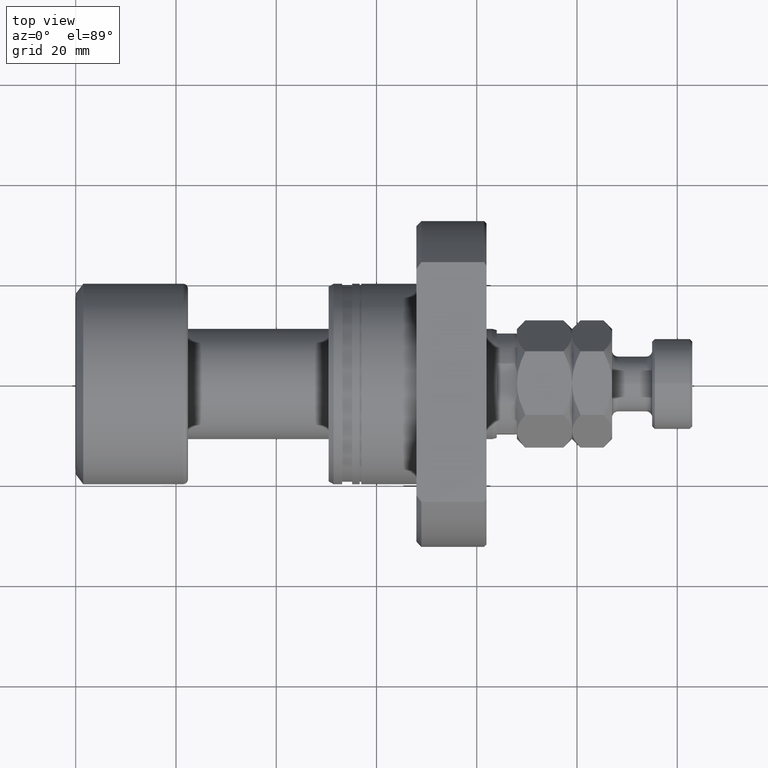
[diagram: clean part render]
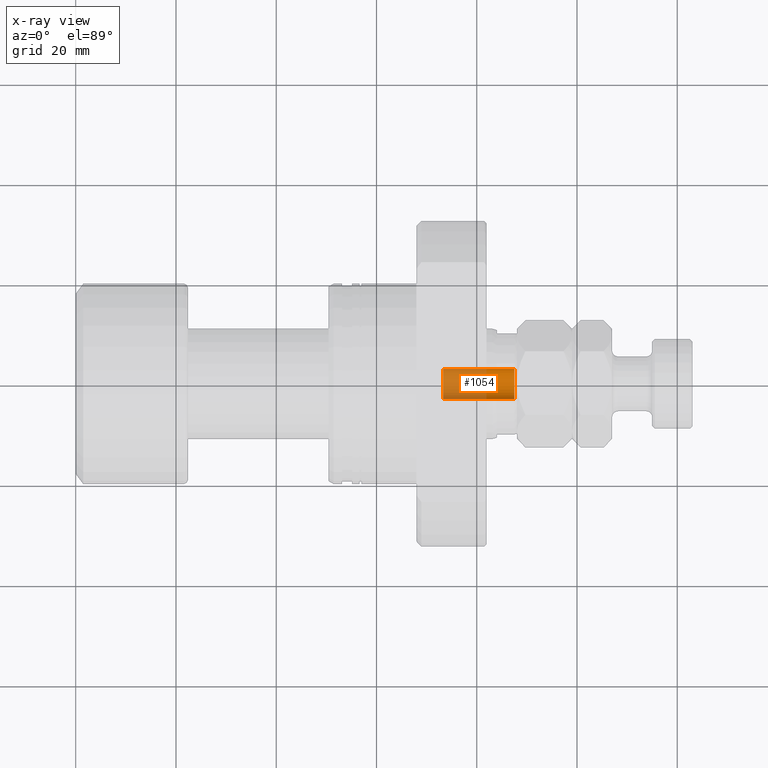
[diagram: x-ray — body ghosted, one internal face saturated and labeled with its STEP entity id]
A machine part, top view, then the same camera in x-ray: the body is ghosted and one INTERNAL B-rep face — a face not visible from any outside direction — is saturated and labeled: STEP entity #1054.
In plain terms, the highlighted cylindrical surface (edge-blend (fillet) strip) has radius 3 mm, axis along (1, -0, 0).
Its self-contained STEP definition (entity closure, byte-faithful):
#257 = CARTESIAN_POINT ( 'NONE',  ( 87.50000000000014211, 2.999999999998976374, 0.000000000000000000 ) ) ;
#558 = LINE ( 'NONE', #4736, #1499 ) ;
#614 = VERTEX_POINT ( 'NONE', #257 ) ;
#661 = CARTESIAN_POINT ( 'NONE',  ( 87.50000000000008527, -1.450106699555703523E-12, 0.000000000000000000 ) ) ;
#667 = CYLINDRICAL_SURFACE ( 'NONE', #1778, 3.000000000000426770 ) ;
#668 = CARTESIAN_POINT ( 'NONE',  ( 87.50000000000004263, -3.000000000001877165, 3.673940397442726456E-16 ) ) ;
#749 = CARTESIAN_POINT ( 'NONE',  ( 73.29999999999999716, -1.214775098027805124E-12, 0.000000000000000000 ) ) ;
#794 = EDGE_CURVE ( 'NONE', #3494, #2888, #1550, .T. ) ;
#849 = CIRCLE ( 'NONE', #3210, 3.000000000000426770 ) ;
#987 = ORIENTED_EDGE ( 'NONE', *, *, #2312, .F. ) ;
#1054 = ADVANCED_FACE ( 'NONE', ( #3727 ), #667, .F. ) ;
#1077 = VECTOR ( 'NONE', #2488, 1000.000000000000000 ) ;
#1499 = VECTOR ( 'NONE', #3917, 1000.000000000000000 ) ;
#1550 = CIRCLE ( 'NONE', #4293, 3.000000000000426770 ) ;
#1711 = EDGE_LOOP ( 'NONE', ( #3818, #4485, #3435, #987 ) ) ;
#1737 = CARTESIAN_POINT ( 'NONE',  ( 73.30000000000003979, 2.999999999999212186, 0.000000000000000000 ) ) ;
#1751 = DIRECTION ( 'NONE',  ( 1.000000000000000000, -1.657264799492230625E-14, -0.000000000000000000 ) ) ;
#1778 = AXIS2_PLACEMENT_3D ( 'NONE', #2531, #1751, #3248 ) ;
#1836 = DIRECTION ( 'NONE',  ( -1.850371707708330965E-14, -1.000000000000000000, 0.000000000000000000 ) ) ;
#1858 = DIRECTION ( 'NONE',  ( 1.000000000000000000, -1.657264799492241669E-14, 0.000000000000000000 ) ) ;
#2184 = CARTESIAN_POINT ( 'NONE',  ( 73.29999999999994031, -3.000000000001641354, 3.673940397442581995E-16 ) ) ;
#2263 = DIRECTION ( 'NONE',  ( 1.850371707708330965E-14, 1.000000000000000000, 0.000000000000000000 ) ) ;
#2312 = EDGE_CURVE ( 'NONE', #2888, #614, #3620, .T. ) ;
#2488 = DIRECTION ( 'NONE',  ( 1.000000000000000000, -1.657264799492230625E-14, -0.000000000000000000 ) ) ;
#2531 = CARTESIAN_POINT ( 'NONE',  ( 73.29999999999999716, -1.214775098027805124E-12, 0.000000000000000000 ) ) ;
#2548 = EDGE_CURVE ( 'NONE', #3452, #614, #849, .T. ) ;
#2888 = VERTEX_POINT ( 'NONE', #1737 ) ;
#3210 = AXIS2_PLACEMENT_3D ( 'NONE', #661, #1858, #1836 ) ;
#3248 = DIRECTION ( 'NONE',  ( 1.850371707708330965E-14, 1.000000000000000000, 0.000000000000000000 ) ) ;
#3435 = ORIENTED_EDGE ( 'NONE', *, *, #2548, .T. ) ;
#3452 = VERTEX_POINT ( 'NONE', #668 ) ;
#3494 = VERTEX_POINT ( 'NONE', #2184 ) ;
#3620 = LINE ( 'NONE', #4358, #1077 ) ;
#3727 = FACE_OUTER_BOUND ( 'NONE', #1711, .T. ) ;
#3792 = DIRECTION ( 'NONE',  ( 1.000000000000000000, -1.657264799492230625E-14, 0.000000000000000000 ) ) ;
#3818 = ORIENTED_EDGE ( 'NONE', *, *, #794, .F. ) ;
#3917 = DIRECTION ( 'NONE',  ( 1.000000000000000000, -1.657264799492230625E-14, -0.000000000000000000 ) ) ;
#4142 = EDGE_CURVE ( 'NONE', #3494, #3452, #558, .T. ) ;
#4293 = AXIS2_PLACEMENT_3D ( 'NONE', #749, #3792, #2263 ) ;
#4358 = CARTESIAN_POINT ( 'NONE',  ( 73.30000000000003979, 2.999999999999212186, 0.000000000000000000 ) ) ;
#4485 = ORIENTED_EDGE ( 'NONE', *, *, #4142, .T. ) ;
#4736 = CARTESIAN_POINT ( 'NONE',  ( 73.29999999999994031, -3.000000000001641354, 3.673940397442581995E-16 ) ) ;